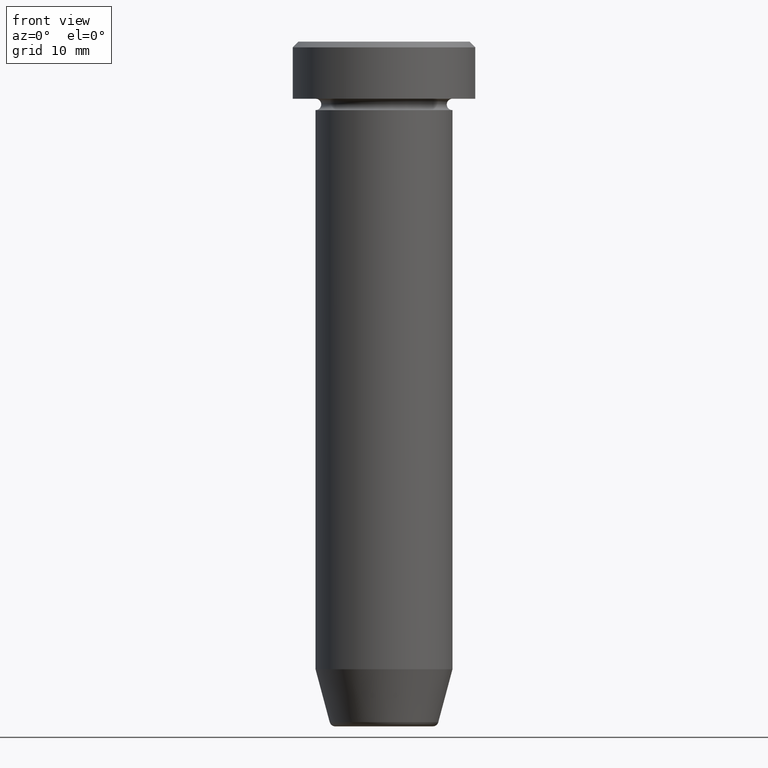
[diagram: clean part render]
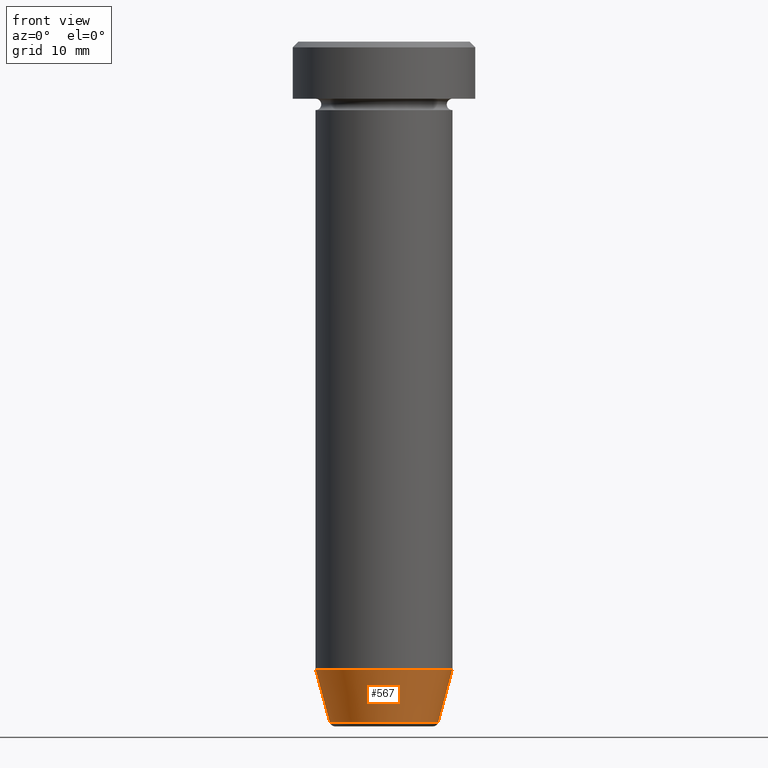
[diagram: same view with one face highlighted and labeled with its STEP entity id]
A machine part, front view. The second image highlights one B-rep face of the part: STEP entity #567.
In plain terms, the highlighted conical surface has half-angle 15 deg.
Its self-contained STEP definition (entity closure, byte-faithful):
#10 = ORIENTED_EDGE ( 'NONE', *, *, #518, .F. ) ;
#18 = CARTESIAN_POINT ( 'NONE',  ( 6.000000000000000000, 0.000000000000000000, -54.99999999999999289 ) ) ;
#86 = CARTESIAN_POINT ( 'NONE',  ( -4.660254037844383745, 5.707165190659652868E-16, -60.00000000000000000 ) ) ;
#95 = VERTEX_POINT ( 'NONE', #323 ) ;
#162 = VECTOR ( 'NONE', #414, 1000.000000000000114 ) ;
#177 = ORIENTED_EDGE ( 'NONE', *, *, #316, .T. ) ;
#181 = DIRECTION ( 'NONE',  ( 1.000000000000000000, 0.000000000000000000, 0.000000000000000000 ) ) ;
#183 = LINE ( 'NONE', #86, #573 ) ;
#186 = CONICAL_SURFACE ( 'NONE', #382, 4.660254037844383745, 0.2617993877991497409 ) ;
#219 = DIRECTION ( 'NONE',  ( -0.2588190451025210170, 3.169619151431768639E-17, 0.9659258262890680902 ) ) ;
#225 = CARTESIAN_POINT ( 'NONE',  ( 4.660254037844383745, 0.000000000000000000, -60.00000000000000000 ) ) ;
#226 = VERTEX_POINT ( 'NONE', #18 ) ;
#232 = AXIS2_PLACEMENT_3D ( 'NONE', #537, #349, #303 ) ;
#233 = DIRECTION ( 'NONE',  ( -1.000000000000000000, 0.000000000000000000, 0.000000000000000000 ) ) ;
#285 = CARTESIAN_POINT ( 'NONE',  ( -6.000000000000000000, 7.347880794884119736E-16, -54.99999999999999289 ) ) ;
#303 = DIRECTION ( 'NONE',  ( 1.000000000000000000, 0.000000000000000000, 0.000000000000000000 ) ) ;
#316 = EDGE_CURVE ( 'NONE', #455, #95, #449, .T. ) ;
#317 = VERTEX_POINT ( 'NONE', #285 ) ;
#318 = CARTESIAN_POINT ( 'NONE',  ( 0.000000000000000000, 0.000000000000000000, -60.00000000000000000 ) ) ;
#323 = CARTESIAN_POINT ( 'NONE',  ( 4.759553456999439547, 0.000000000000000000, -59.62940952255126348 ) ) ;
#349 = DIRECTION ( 'NONE',  ( -0.000000000000000000, -0.000000000000000000, 1.000000000000000000 ) ) ;
#382 = AXIS2_PLACEMENT_3D ( 'NONE', #318, #503, #181 ) ;
#384 = CARTESIAN_POINT ( 'NONE',  ( 0.000000000000000000, 0.000000000000000000, -59.62940952255126348 ) ) ;
#410 = FACE_OUTER_BOUND ( 'NONE', #470, .T. ) ;
#414 = DIRECTION ( 'NONE',  ( 0.2588190451025210170, 0.000000000000000000, 0.9659258262890680902 ) ) ;
#449 = CIRCLE ( 'NONE', #548, 4.759553456999439547 ) ;
#455 = VERTEX_POINT ( 'NONE', #571 ) ;
#468 = DIRECTION ( 'NONE',  ( -0.000000000000000000, -0.000000000000000000, 1.000000000000000000 ) ) ;
#470 = EDGE_LOOP ( 'NONE', ( #591, #177, #596, #10 ) ) ;
#489 = CIRCLE ( 'NONE', #232, 6.000000000000000000 ) ;
#503 = DIRECTION ( 'NONE',  ( -0.000000000000000000, -0.000000000000000000, 1.000000000000000000 ) ) ;
#518 = EDGE_CURVE ( 'NONE', #317, #226, #489, .T. ) ;
#537 = CARTESIAN_POINT ( 'NONE',  ( 0.000000000000000000, 0.000000000000000000, -54.99999999999999289 ) ) ;
#541 = EDGE_CURVE ( 'NONE', #455, #317, #183, .T. ) ;
#546 = LINE ( 'NONE', #225, #162 ) ;
#548 = AXIS2_PLACEMENT_3D ( 'NONE', #384, #468, #233 ) ;
#567 = ADVANCED_FACE ( 'NONE', ( #410 ), #186, .T. ) ;
#571 = CARTESIAN_POINT ( 'NONE',  ( -4.759553456999439547, 6.588326350684602264E-16, -59.62940952255126348 ) ) ;
#573 = VECTOR ( 'NONE', #219, 1000.000000000000114 ) ;
#587 = EDGE_CURVE ( 'NONE', #95, #226, #546, .T. ) ;
#591 = ORIENTED_EDGE ( 'NONE', *, *, #541, .F. ) ;
#596 = ORIENTED_EDGE ( 'NONE', *, *, #587, .T. ) ;